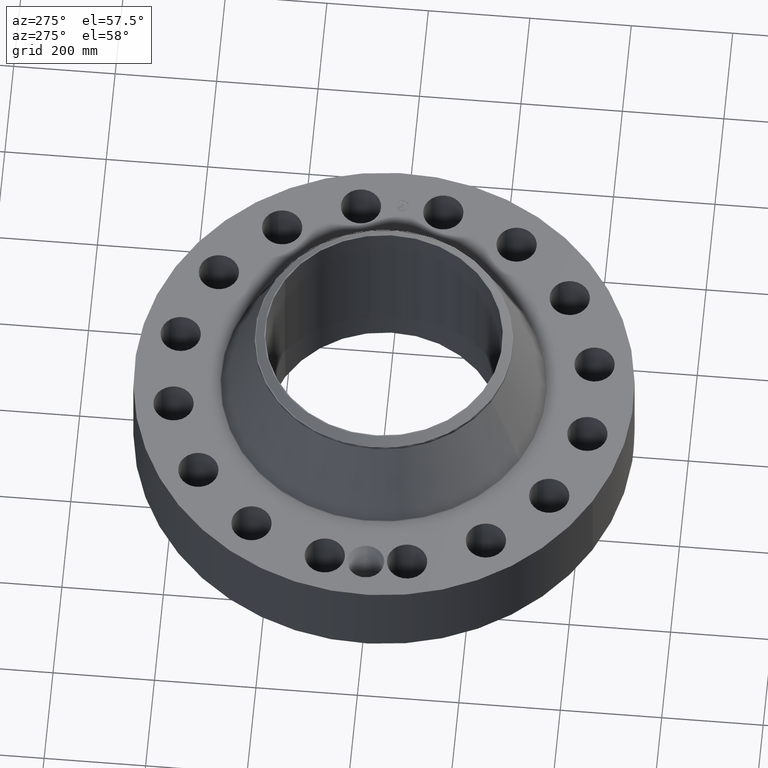
[diagram: clean part render]
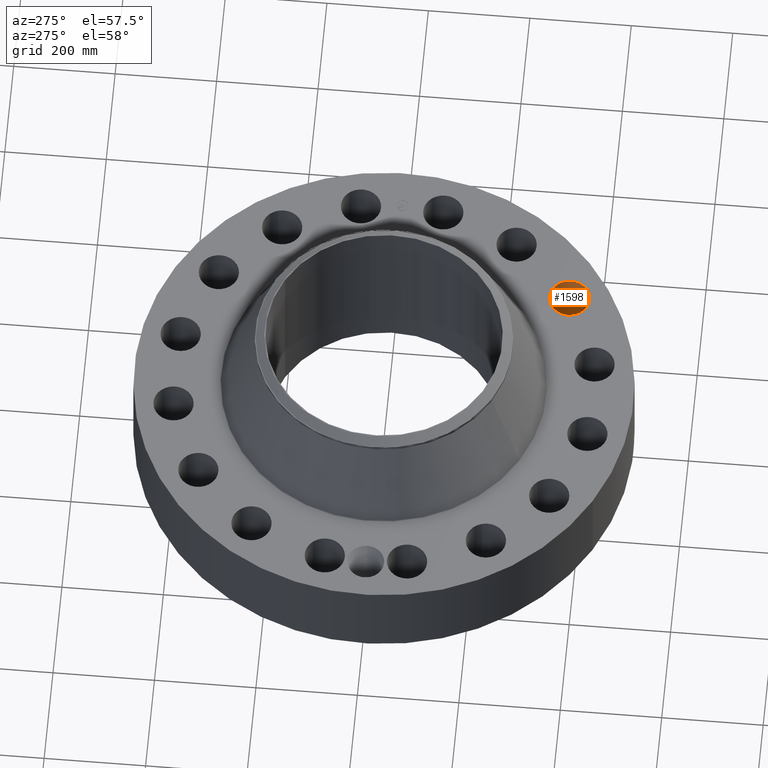
[diagram: same view with one face highlighted and labeled with its STEP entity id]
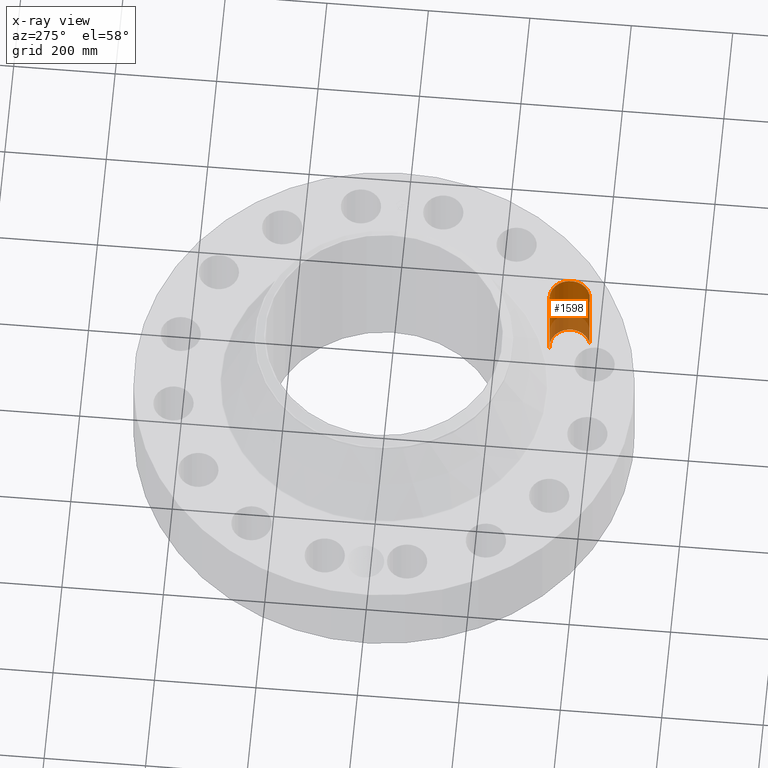
[diagram: x-ray of the same camera — body ghosted, the highlighted face saturated]
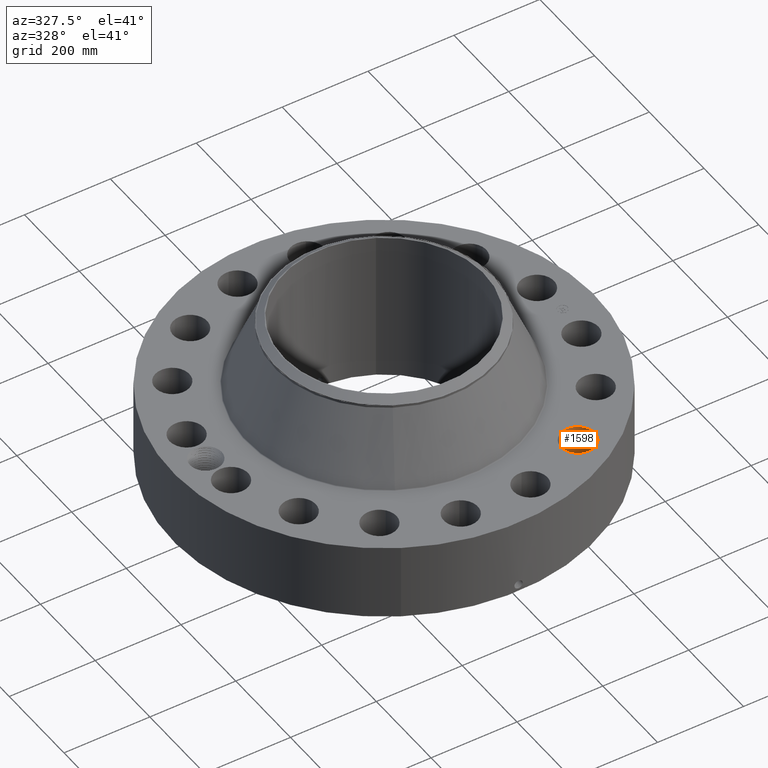
[diagram: same view with one face highlighted and labeled with its STEP entity id]
A machine part, auxiliary view. The second image highlights one B-rep face of the part: STEP entity #1598.
The next image is the same camera in x-ray: the body ghosted, the highlighted face saturated — about 31% of this face is hidden behind the body in this view.
A second angle (auxiliary view) of the same face is appended — the face is thin or edge-on in the first view.
In plain terms, the highlighted cylindrical surface (edge-blend (fillet) strip) has radius 39.624 mm, axis along (0, -0, -1).
Its self-contained STEP definition (entity closure, byte-faithful):
#296=AXIS2_PLACEMENT_3D('Circle Axis2P3D',#294,#295,$) ;
#784=AXIS2_PLACEMENT_3D('Circle Axis2P3D',#782,#783,$) ;
#1580=AXIS2_PLACEMENT_3D('Cylinder Axis2P3D',#1577,#1578,#1579) ;
#294=CARTESIAN_POINT('Axis2P3D Location',(9.09746256573,-13.6153149015,0.250000000001)) ;
#298=CARTESIAN_POINT('Vertex',(8.65826089715,-12.1184174787,0.250000000001)) ;
#300=CARTESIAN_POINT('Vertex',(9.53666423432,-15.1122123243,0.250000000001)) ;
#777=CARTESIAN_POINT('Vertex',(9.53666423432,-15.1122123243,7.25000000003)) ;
#779=CARTESIAN_POINT('Vertex',(8.65826089715,-12.1184174787,7.25000000003)) ;
#782=CARTESIAN_POINT('Axis2P3D Location',(9.09746256573,-13.6153149015,7.25000000003)) ;
#1577=CARTESIAN_POINT('Axis2P3D Location',(9.09746256573,-13.6153149015,7.24606299215)) ;
#1582=CARTESIAN_POINT('Line Origine',(8.65826089715,-12.1184174787,3.75000000002)) ;
#1587=CARTESIAN_POINT('Line Origine',(9.53666423432,-15.1122123243,3.75000000002)) ;
#295=DIRECTION('Axis2P3D Direction',(0.,0.,-0.0393700787402)) ;
#783=DIRECTION('Axis2P3D Direction',(0.,0.,-0.0393700787402)) ;
#1578=DIRECTION('Axis2P3D Direction',(0.,-0.,-0.0393700787402)) ;
#1579=DIRECTION('Axis2P3D XDirection',(0.0110842335096,-0.0377775444876,0.)) ;
#1583=DIRECTION('Vector Direction',(0.,0.,-0.0393700787402)) ;
#1588=DIRECTION('Vector Direction',(0.,0.,-0.0393700787402)) ;
#1584=VECTOR('Line Direction',#1583,0.0393700787402) ;
#1589=VECTOR('Line Direction',#1588,0.0393700787402) ;
#1593=ORIENTED_EDGE('',*,*,#1586,.F.) ;
#1594=ORIENTED_EDGE('',*,*,#302,.T.) ;
#1595=ORIENTED_EDGE('',*,*,#1591,.T.) ;
#1596=ORIENTED_EDGE('',*,*,#786,.F.) ;
#1598=ADVANCED_FACE('PartBody',(#1597),#1581,.F.) ;
#297=CIRCLE('generated circle',#296,1.56000000001) ;
#785=CIRCLE('generated circle',#784,1.56000000001) ;
#1581=CYLINDRICAL_SURFACE('generated cylinder',#1580,1.56000000001) ;
#302=EDGE_CURVE('',#299,#301,#297,.T.) ;
#786=EDGE_CURVE('',#780,#778,#785,.T.) ;
#1586=EDGE_CURVE('',#299,#780,#1585,.F.) ;
#1591=EDGE_CURVE('',#301,#778,#1590,.F.) ;
#1592=EDGE_LOOP('',(#1593,#1594,#1595,#1596)) ;
#1597=FACE_OUTER_BOUND('',#1592,.T.) ;
#1585=LINE('Line',#1582,#1584) ;
#1590=LINE('Line',#1587,#1589) ;
#299=VERTEX_POINT('',#298) ;
#301=VERTEX_POINT('',#300) ;
#778=VERTEX_POINT('',#777) ;
#780=VERTEX_POINT('',#779) ;